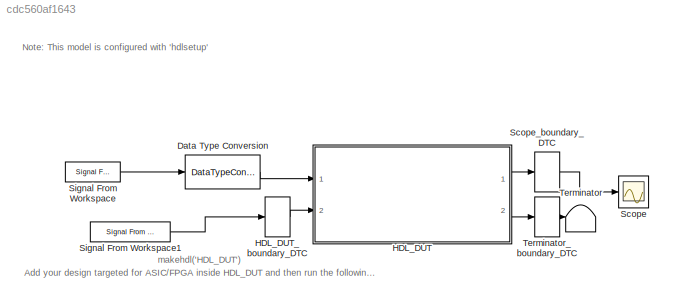
MODEL slx_cdc560af1643
KIND model
CONFIG AbsTol = auto
CONFIG EnableMultiTasking = off
CONFIG FixedStep = auto
CONFIG MaxStep = auto
CONFIG MinStep = auto
CONFIG RelTol = 1e-3
CONFIG SampleTimeConstraint = Unconstrained
CONFIG Solver = FixedStepDiscrete
CONFIG SolverName = FixedStepDiscrete
CONFIG StartTime = 0.0
CONFIG StopTime = timetorun
BLOCK [DataTypeConversion] Data Type Conversion
  OutDataTypeStr = DT_input
  RndMeth = Floor
  SaturateOnIntegerOverflow = off
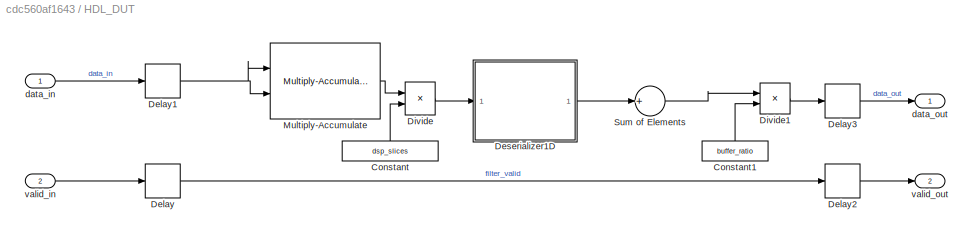
BLOCK [SubSystem] HDL_DUT
  Ports = [2, 2]
  RequestExecContextInheritance = off
BLOCK [Constant] HDL_DUT/Constant
  SampleTime = -1
  Value = dsp_slices
BLOCK [Constant] HDL_DUT/Constant1
  SampleTime = -1
  Value = buffer_ratio
BLOCK [Delay] HDL_DUT/Delay
  DelayLength = 1
  InputPortMap = u0
  Ports = [1, 1]
BLOCK [Delay] HDL_DUT/Delay1
  DelayLength = 1
  InputPortMap = u0
  Ports = [1, 1]
BLOCK [Delay] HDL_DUT/Delay2
  DelayLength = 1
  InputPortMap = u0
  Ports = [1, 1]
BLOCK [Delay] HDL_DUT/Delay3
  DelayLength = 1
  InputPortMap = u0
  Ports = [1, 1]
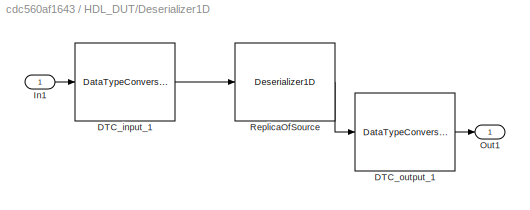
BLOCK [SubSystem] HDL_DUT/Deserializer1D
  Ports = [1, 1]
  RequestExecContextInheritance = off
  Tag = DecoupledSystem
BLOCK [DataTypeConversion] HDL_DUT/Deserializer1D/DTC_input_1
  LockScale = on
  OutDataTypeStr = fixdt('double')
  RndMeth = Nearest
  SaturateOnIntegerOverflow = off
BLOCK [DataTypeConversion] HDL_DUT/Deserializer1D/DTC_output_1
  OutDataTypeStr = fixdt('double')
  RndMeth = Floor
  SaturateOnIntegerOverflow = off
BLOCK [Inport] HDL_DUT/Deserializer1D/In1
  IconDisplay = Port number
  LockScale = on
BLOCK [Outport] HDL_DUT/Deserializer1D/Out1
  IconDisplay = Port number
  LockScale = on
BLOCK [Reference] HDL_DUT/Deserializer1D/ReplicaOfSource  REF=hdlsllib/HDL Operations/Deserializer1D
  Ports = [1, 1]
  SourceBlock = hdlsllib/HDL Operations/Deserializer1D
  SourceProductBaseCode = SL
  SourceProductName = Simulink
  SourceType = Deserializer1D
BLOCK [Product] HDL_DUT/Divide
  InputSameDT = off
  Inputs = */
  OutDataTypeStr = Inherit: Inherit via internal rule
  Ports = [2, 1]
BLOCK [Product] HDL_DUT/Divide1
  InputSameDT = off
  Inputs = */
  OutDataTypeStr = Inherit: Inherit via internal rule
  Ports = [2, 1]
  RndMeth = Floor
  SaturateOnIntegerOverflow = off
BLOCK [Reference] HDL_DUT/Multiply-Accumulate  REF=hdlsllib/HDL Operations/Multiply-Accumulate
  Ports = [2, 1]
  SourceBlock = hdlsllib/HDL Operations/Multiply-Accumulate
  SourceProductBaseCode = SL
  SourceProductName = Simulink
  SourceType = Multiply-Accumulate
BLOCK [Sum] HDL_DUT/Sum of Elements
  InputSameDT = off
  Inputs = +
  OutDataTypeStr = Inherit: Inherit via internal rule
  Ports = [1, 1]
  SaturateOnIntegerOverflow = off
BLOCK [Inport] HDL_DUT/data_in
  IconDisplay = Port number
BLOCK [Outport] HDL_DUT/data_out
  IconDisplay = Port number
  VectorParamsAs1DForOutWhenUnconnected = off
BLOCK [Inport] HDL_DUT/valid_in
  IconDisplay = Port number
  Port = 2
BLOCK [Outport] HDL_DUT/valid_out
  IconDisplay = Port number
  Port = 2
  VectorParamsAs1DForOutWhenUnconnected = off
BLOCK [DataTypeConversion] HDL_DUT_boundary_DTC
BLOCK [Scope] Scope
  Floating = off
  NumInputPorts = 1
  Ports = [1]
  ScopeSpecificationString = Simulink.scopes.TimeScopeBlockCfg('CurrentConfiguration', extmgr.ConfigurationSet(extmgr.Configuration('Core','General UI',true),extmgr.Configuration('Core','Source UI',true),extmgr.Configuration('Sources','WiredSimulink',true,'DataLoggingSaveFormat','Array','DataLoggingLimitDataPoints',true,'DataLoggingDecimation','1'),extmgr.Configuration('Visuals','Time Domain',true,'SerializedDisplays',{struct...<+1679ch>
BLOCK [DataTypeConversion] Scope_boundary_DTC
BLOCK [Reference] Signal From Workspace  REF=dspsrcs4/Signal From
Workspace
  Ports = [0, 1]
  SourceBlock = dspsrcs4/Signal From\nWorkspace
  SourceProductBaseCode = DS
  SourceProductName = DSP System Toolbox
  SourceType = Signal From Workspace
BLOCK [Reference] Signal From Workspace1  REF=dspsrcs4/Signal From
Workspace
  Ports = [0, 1]
  SourceBlock = dspsrcs4/Signal From\nWorkspace
  SourceProductBaseCode = DS
  SourceProductName = DSP System Toolbox
  SourceType = Signal From Workspace
BLOCK [Terminator] Terminator
BLOCK [DataTypeConversion] Terminator_boundary_DTC
ANNOTATION (root): Add your design targeted for ASIC/FPGA inside HDL_DUT and then run the following command: makehdl('HDL_DUT')
ANNOTATION (root): Note: This model is configured with ' hdlsetup '
LINE Data Type Conversion:1 -> HDL_DUT:1
LINE HDL_DUT/Constant1:1 -> HDL_DUT/Divide1:2
LINE HDL_DUT/Constant:1 -> HDL_DUT/Divide:2
NET HDL_DUT/Delay1:1 -> HDL_DUT/Multiply-Accumulate:1, HDL_DUT/Multiply-Accumulate:2
LINE HDL_DUT/Delay2:1 -> HDL_DUT/valid_out:1
LINE HDL_DUT/Delay3:1 -> HDL_DUT/data_out:1
LINE HDL_DUT/Delay:1 -> HDL_DUT/Delay2:1
LINE HDL_DUT/Deserializer1D/DTC_input_1:1 -> HDL_DUT/Deserializer1D/ReplicaOfSource:1
LINE HDL_DUT/Deserializer1D/DTC_output_1:1 -> HDL_DUT/Deserializer1D/Out1:1
LINE HDL_DUT/Deserializer1D/In1:1 -> HDL_DUT/Deserializer1D/DTC_input_1:1
LINE HDL_DUT/Deserializer1D/ReplicaOfSource:1 -> HDL_DUT/Deserializer1D/DTC_output_1:1
LINE HDL_DUT/Deserializer1D:1 -> HDL_DUT/Sum of Elements:1
LINE HDL_DUT/Divide1:1 -> HDL_DUT/Delay3:1
LINE HDL_DUT/Divide:1 -> HDL_DUT/Deserializer1D:1
LINE HDL_DUT/Multiply-Accumulate:1 -> HDL_DUT/Divide:1
LINE HDL_DUT/Sum of Elements:1 -> HDL_DUT/Divide1:1
LINE HDL_DUT/data_in:1 -> HDL_DUT/Delay1:1
LINE HDL_DUT/valid_in:1 -> HDL_DUT/Delay:1
LINE HDL_DUT:1 -> Scope_boundary_DTC:1
LINE HDL_DUT:2 -> Terminator_boundary_DTC:1
LINE HDL_DUT_boundary_DTC:1 -> HDL_DUT:2
LINE Scope_boundary_DTC:1 -> Scope:1
LINE Signal From Workspace1:1 -> HDL_DUT_boundary_DTC:1
LINE Signal From Workspace:1 -> Data Type Conversion:1
LINE Terminator_boundary_DTC:1 -> Terminator:1
note: NET lines group one-source signal fan-out (src -> all destinations, sorted); 1:1 wires keep LINE
